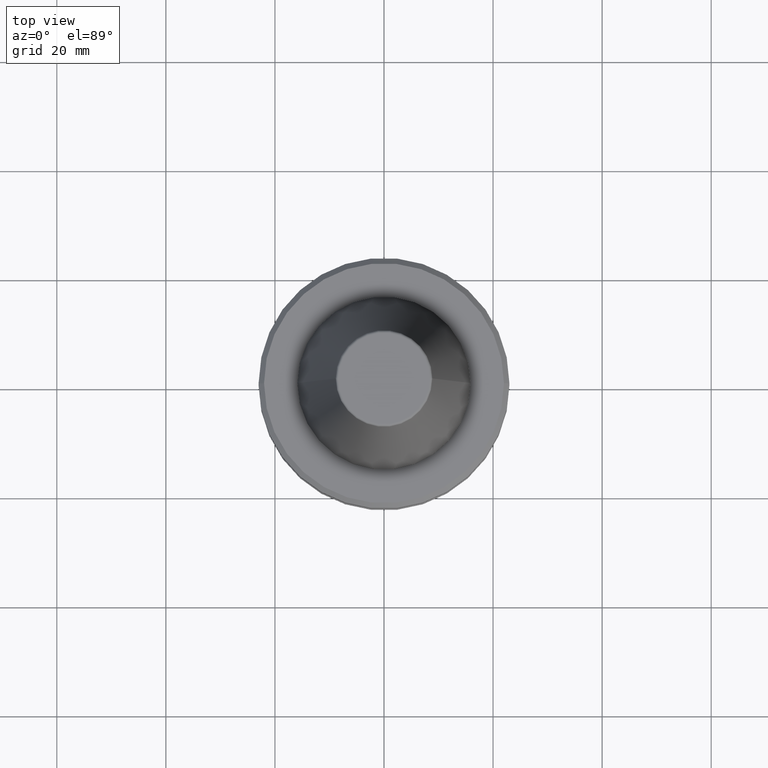
[diagram: clean part render]
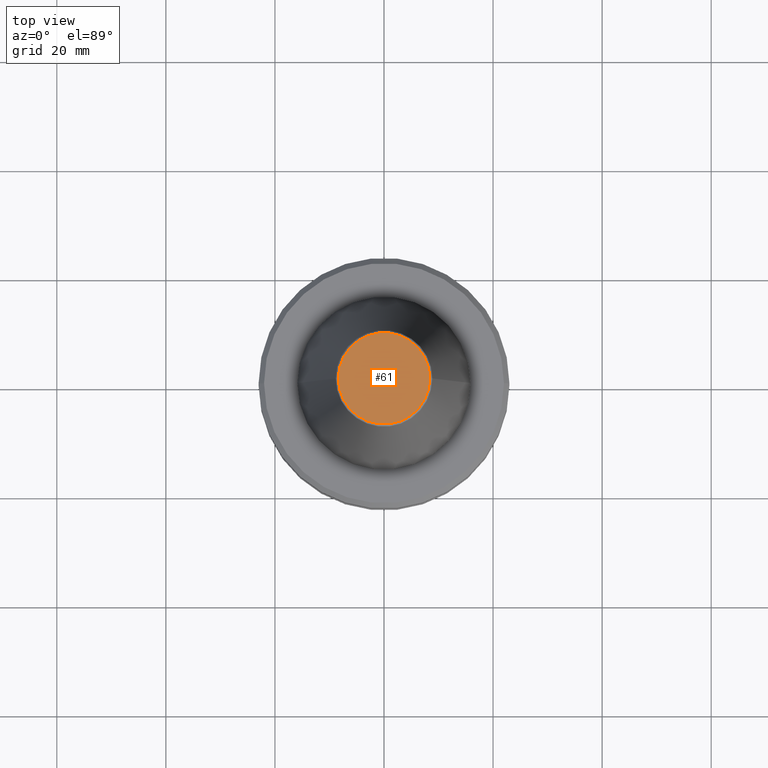
[diagram: same view with one face highlighted and labeled with its STEP entity id]
A machine part, top view. The second image highlights one B-rep face of the part: STEP entity #61.
In plain terms, the highlighted planar face has unit normal (0, 0, -1).
Its self-contained STEP definition (entity closure, byte-faithful):
#43 = ORIENTED_EDGE ( 'NONE', *, *, #421, .T. ) ;
#52 = ORIENTED_EDGE ( 'NONE', *, *, #391, .T. ) ;
#61 = ADVANCED_FACE ( 'NONE', ( #81 ), #701, .F. ) ;
#81 = FACE_OUTER_BOUND ( 'NONE', #844, .T. ) ;
#189 = CARTESIAN_POINT ( 'NONE',  ( 0.0000000000000000000, 8.384228427309903300, 48.39999999999976400 ) ) ;
#243 = AXIS2_PLACEMENT_3D ( 'NONE', #189, #404, #371 ) ;
#246 = VERTEX_POINT ( 'NONE', #893 ) ;
#348 = CIRCLE ( 'NONE', #947, 8.384228427309903300 ) ;
#371 = DIRECTION ( 'NONE',  ( -1.000000000000000000, 0.0000000000000000000, -0.0000000000000000000 ) ) ;
#391 = EDGE_CURVE ( 'NONE', #1153, #246, #348, .T. ) ;
#392 = CARTESIAN_POINT ( 'NONE',  ( 0.0000000000000000000, 0.0000000000000000000, 48.39999999999974300 ) ) ;
#404 = DIRECTION ( 'NONE',  ( 0.0000000000000000000, 0.0000000000000000000, -1.000000000000000000 ) ) ;
#421 = EDGE_CURVE ( 'NONE', #246, #1153, #693, .T. ) ;
#492 = DIRECTION ( 'NONE',  ( -0.0000000000000000000, -0.0000000000000000000, 1.000000000000000000 ) ) ;
#495 = DIRECTION ( 'NONE',  ( 1.000000000000000000, 0.0000000000000000000, 0.0000000000000000000 ) ) ;
#619 = AXIS2_PLACEMENT_3D ( 'NONE', #392, #1030, #495 ) ;
#693 = CIRCLE ( 'NONE', #619, 8.384228427309903300 ) ;
#701 = PLANE ( 'NONE',  #243 ) ;
#844 = EDGE_LOOP ( 'NONE', ( #52, #43 ) ) ;
#893 = CARTESIAN_POINT ( 'NONE',  ( -8.384228427309903300, 1.057067554674951700E-015, 48.39999999999974300 ) ) ;
#947 = AXIS2_PLACEMENT_3D ( 'NONE', #1026, #492, #1123 ) ;
#1026 = CARTESIAN_POINT ( 'NONE',  ( 0.0000000000000000000, 0.0000000000000000000, 48.39999999999974300 ) ) ;
#1030 = DIRECTION ( 'NONE',  ( -0.0000000000000000000, -0.0000000000000000000, 1.000000000000000000 ) ) ;
#1031 = CARTESIAN_POINT ( 'NONE',  ( 8.384228427309903300, 0.0000000000000000000, 48.39999999999974300 ) ) ;
#1123 = DIRECTION ( 'NONE',  ( 1.000000000000000000, 0.0000000000000000000, 0.0000000000000000000 ) ) ;
#1153 = VERTEX_POINT ( 'NONE', #1031 ) ;